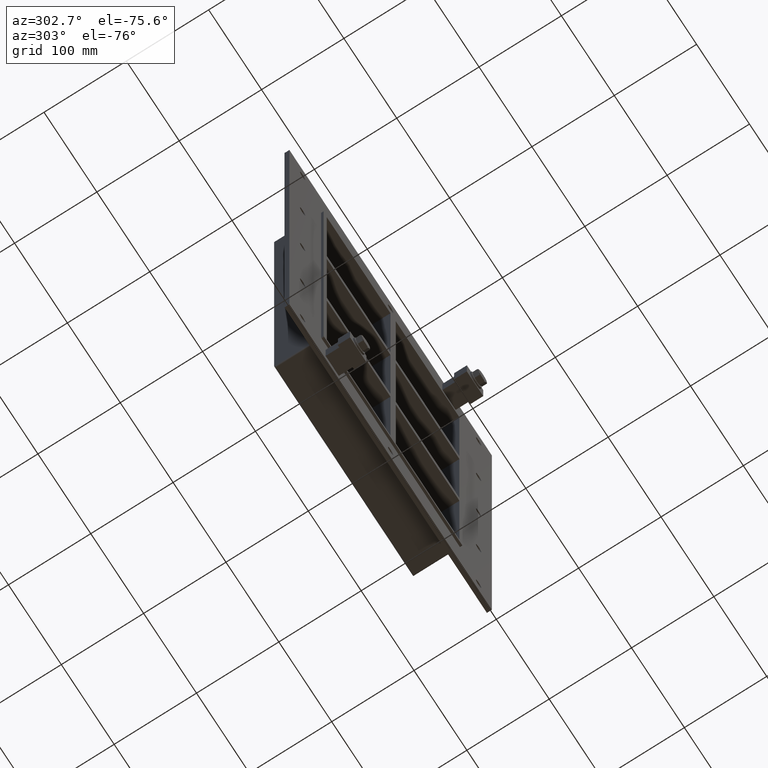
[diagram: clean part render]
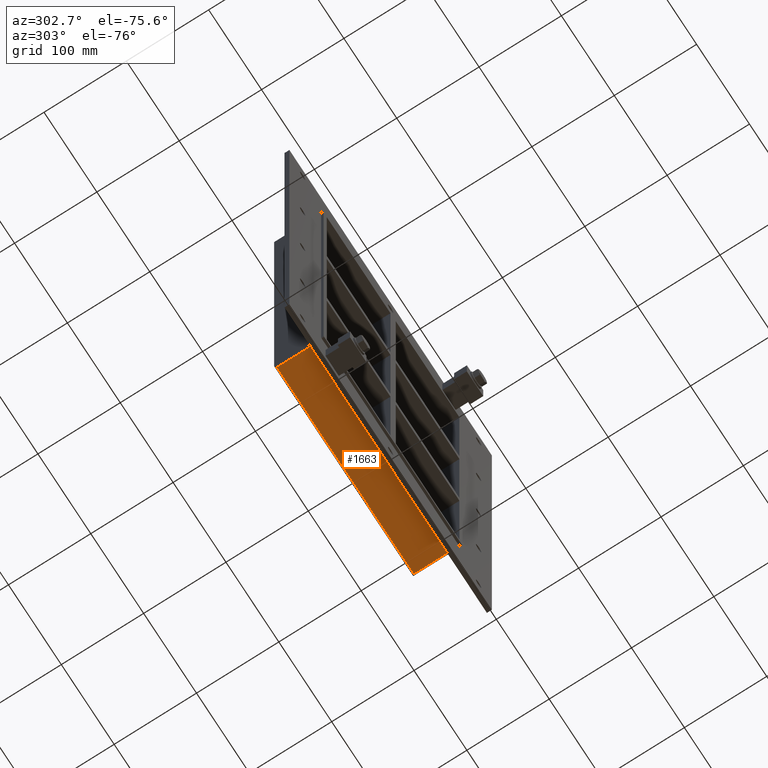
[diagram: same view with one face highlighted and labeled with its STEP entity id]
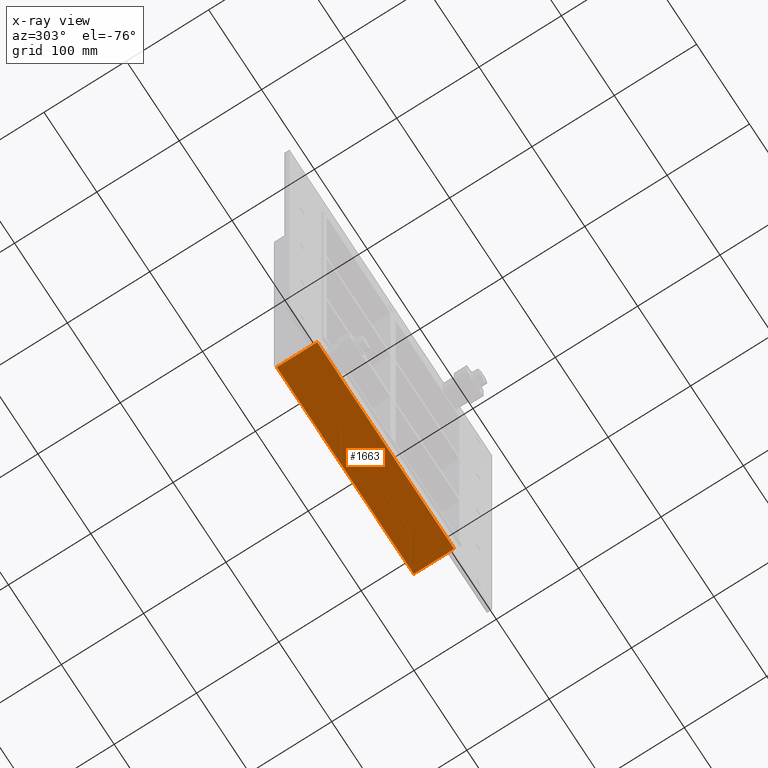
[diagram: x-ray of the same camera — body ghosted, the highlighted face saturated]
A machine part, auxiliary view. The second image highlights one B-rep face of the part: STEP entity #1663.
The next image is the same camera in x-ray: the body ghosted, the highlighted face saturated — about 0% of this face is hidden behind the body in this view.
In plain terms, the highlighted planar face has unit normal (0, 0, -1).
Its self-contained STEP definition (entity closure, byte-faithful):
#1319=CARTESIAN_POINT('',(-129.50000000000003,6.000000000000001,-257.25));
#1320=VERTEX_POINT('',#1319);
#1328=CARTESIAN_POINT('',(129.5,6.000000000000001,-257.25));
#1329=VERTEX_POINT('',#1328);
#1330=CARTESIAN_POINT('',(129.5,6.000000000000001,-257.25));
#1331=DIRECTION('',(-1.0,0.0,0.0));
#1332=VECTOR('',#1331,259.0);
#1333=LINE('',#1330,#1332);
#1334=EDGE_CURVE('',#1329,#1320,#1333,.T.);
#1633=CARTESIAN_POINT('',(131.5,0.0,-257.25));
#1634=DIRECTION('',(0.0,0.0,-1.0));
#1635=DIRECTION('',(-1.0,0.0,0.0));
#1636=AXIS2_PLACEMENT_3D('',#1633,#1634,#1635);
#1637=PLANE('',#1636);
#1638=ORIENTED_EDGE('',*,*,#1334,.T.);
#1639=CARTESIAN_POINT('',(-129.50000000000003,55.0,-257.25));
#1640=VERTEX_POINT('',#1639);
#1641=CARTESIAN_POINT('',(-129.50000000000003,55.0,-257.25));
#1642=DIRECTION('',(0.0,-1.0,0.0));
#1643=VECTOR('',#1642,49.0);
#1644=LINE('',#1641,#1643);
#1645=EDGE_CURVE('',#1640,#1320,#1644,.T.);
#1646=ORIENTED_EDGE('',*,*,#1645,.F.);
#1647=CARTESIAN_POINT('',(129.5,55.0,-257.25));
#1648=VERTEX_POINT('',#1647);
#1649=CARTESIAN_POINT('',(129.5,55.0,-257.25));
#1650=DIRECTION('',(-1.0,0.0,0.0));
#1651=VECTOR('',#1650,259.00000000000006);
#1652=LINE('',#1649,#1651);
#1653=EDGE_CURVE('',#1648,#1640,#1652,.T.);
#1654=ORIENTED_EDGE('',*,*,#1653,.F.);
#1655=CARTESIAN_POINT('',(129.5,6.000000000000001,-257.25));
#1656=DIRECTION('',(0.0,1.0,0.0));
#1657=VECTOR('',#1656,49.0);
#1658=LINE('',#1655,#1657);
#1659=EDGE_CURVE('',#1329,#1648,#1658,.T.);
#1660=ORIENTED_EDGE('',*,*,#1659,.F.);
#1661=EDGE_LOOP('',(#1638,#1646,#1654,#1660));
#1662=FACE_OUTER_BOUND('',#1661,.T.);
#1663=ADVANCED_FACE('',(#1662),#1637,.T.);